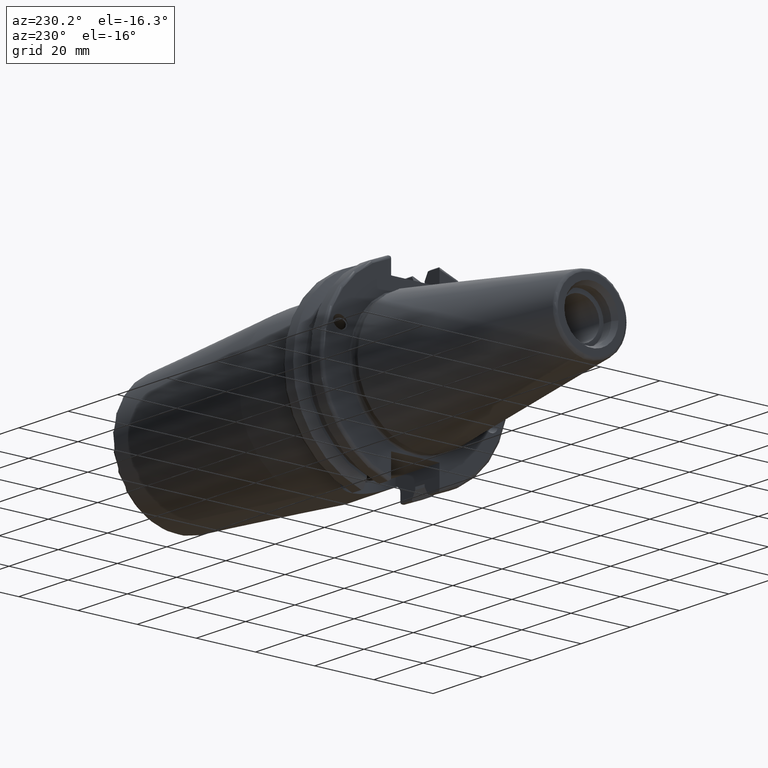
[diagram: clean part render]
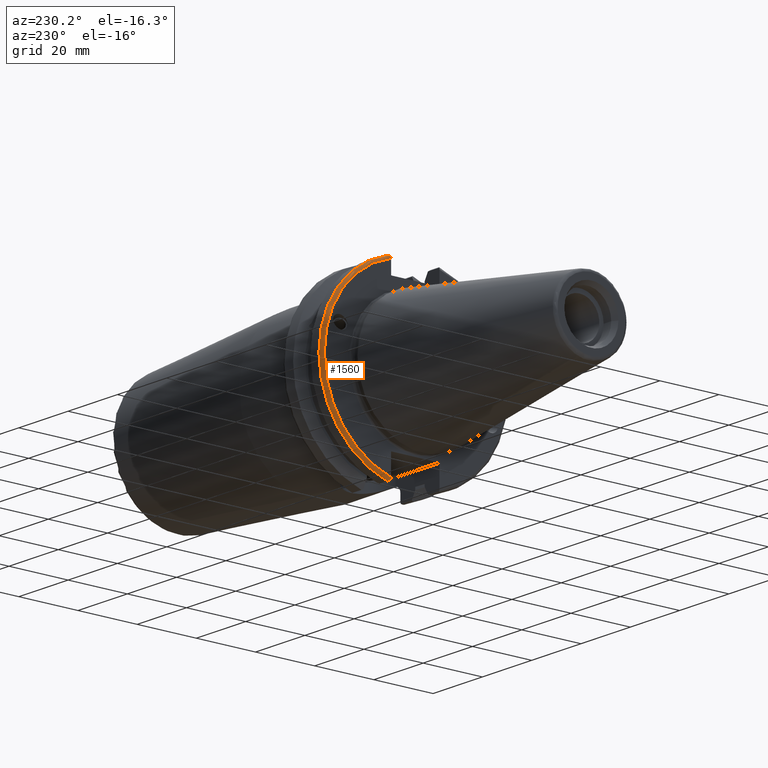
[diagram: same view with one face highlighted and labeled with its STEP entity id]
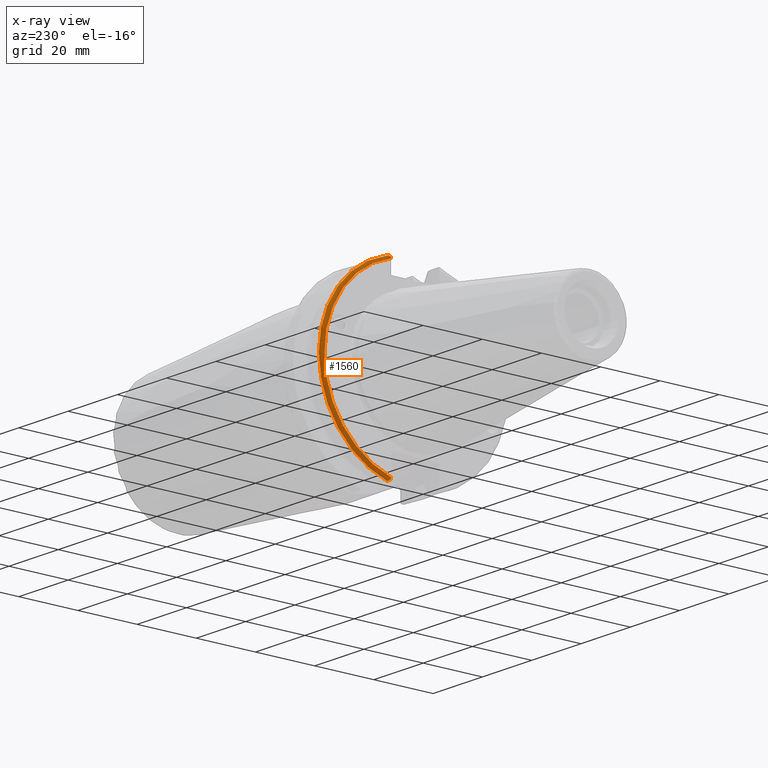
[diagram: x-ray of the same camera — body ghosted, the highlighted face saturated]
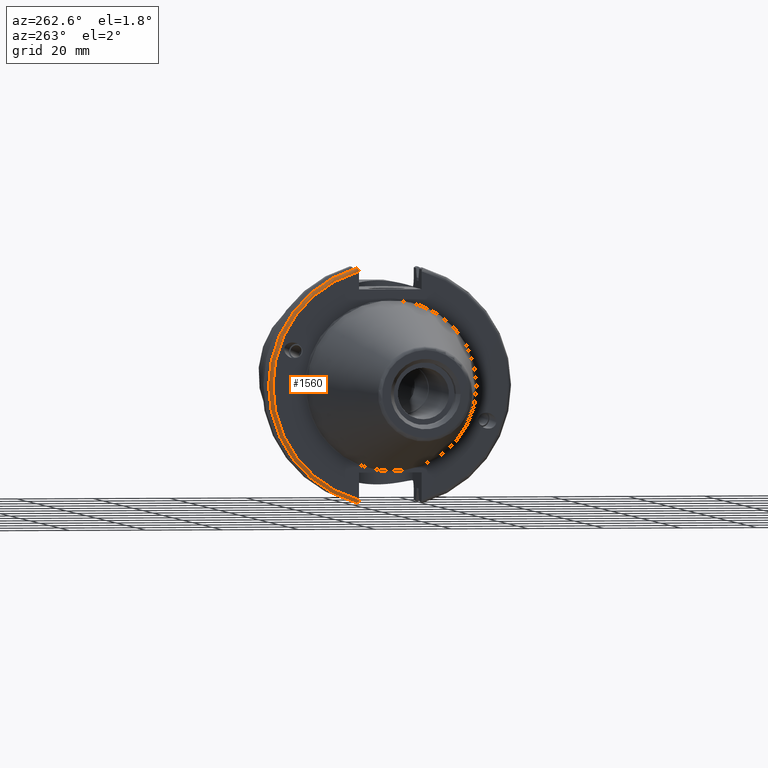
[diagram: same view with one face highlighted and labeled with its STEP entity id]
A machine part, auxiliary view. The second image highlights one B-rep face of the part: STEP entity #1560.
The next image is the same camera in x-ray: the body ghosted, the highlighted face saturated — about 0% of this face is hidden behind the body in this view.
A second angle (auxiliary view) of the same face is appended — the face is thin or edge-on in the first view.
In plain terms, the highlighted toroidal blend (fillet) surface has major radius 30.75 mm and minor (blend) radius 1 mm.
Its self-contained STEP definition (entity closure, byte-faithful):
#118=TOROIDAL_SURFACE('',#1746,30.75,1.);
#178=FACE_OUTER_BOUND('',#277,.T.);
#277=EDGE_LOOP('',(#1335,#1336,#1337,#1338,#1339,#1340));
#360=CIRCLE('',#1728,30.75);
#367=CIRCLE('',#1747,31.75);
#587=B_SPLINE_CURVE_WITH_KNOTS('',3,(#2895,#2896,#2897,#2898,#2899,#2900),
 .UNSPECIFIED.,.F.,.F.,(4,2,4),(0.0977210450333169,0.111963554372601,0.150804064902975),
 .UNSPECIFIED.);
#596=B_SPLINE_CURVE_WITH_KNOTS('',3,(#3012,#3013,#3014,#3015,#3016,#3017,
#3018,#3019),.UNSPECIFIED.,.F.,.F.,(4,2,2,4),(-0.104180282751876,-0.072978474246144,
-0.0343524753874979,0.),.UNSPECIFIED.);
#597=B_SPLINE_CURVE_WITH_KNOTS('',3,(#3022,#3023,#3024,#3025,#3026,#3027,
#3028,#3029),.UNSPECIFIED.,.F.,.F.,(4,2,2,4),(0.,0.0343524753874975,0.0729784742461445,
0.104180282751877),.UNSPECIFIED.);
#598=B_SPLINE_CURVE_WITH_KNOTS('',3,(#3030,#3031,#3032,#3033,#3034,#3035),
 .UNSPECIFIED.,.F.,.F.,(4,2,4),(0.452741154494498,0.491581665024872,0.505824174364157),
 .UNSPECIFIED.);
#709=VERTEX_POINT('',#2831);
#710=VERTEX_POINT('',#2833);
#723=VERTEX_POINT('',#2894);
#739=VERTEX_POINT('',#3010);
#740=VERTEX_POINT('',#3011);
#741=VERTEX_POINT('',#3020);
#908=EDGE_CURVE('',#710,#709,#360,.T.);
#926=EDGE_CURVE('',#723,#710,#587,.T.);
#955=EDGE_CURVE('',#739,#740,#596,.T.);
#956=EDGE_CURVE('',#740,#741,#367,.T.);
#957=EDGE_CURVE('',#741,#723,#597,.T.);
#958=EDGE_CURVE('',#709,#739,#598,.T.);
#1335=ORIENTED_EDGE('',*,*,#955,.T.);
#1336=ORIENTED_EDGE('',*,*,#956,.T.);
#1337=ORIENTED_EDGE('',*,*,#957,.T.);
#1338=ORIENTED_EDGE('',*,*,#926,.T.);
#1339=ORIENTED_EDGE('',*,*,#908,.T.);
#1340=ORIENTED_EDGE('',*,*,#958,.T.);
#1560=ADVANCED_FACE('',(#178),#118,.T.);
#1728=AXIS2_PLACEMENT_3D('',#2834,#2075,#2076);
#1746=AXIS2_PLACEMENT_3D('',#3009,#2132,#2133);
#1747=AXIS2_PLACEMENT_3D('',#3021,#2134,#2135);
#2075=DIRECTION('center_axis',(1.,0.,0.));
#2076=DIRECTION('ref_axis',(0.,1.,1.60812264967664E-16));
#2132=DIRECTION('center_axis',(1.,0.,0.));
#2133=DIRECTION('ref_axis',(0.,0.,-1.));
#2134=DIRECTION('center_axis',(-1.,0.,0.));
#2135=DIRECTION('ref_axis',(0.,1.,1.60812264967664E-16));
#2831=CARTESIAN_POINT('',(3.175,8.19,29.6392712461019));
#2833=CARTESIAN_POINT('',(3.175,8.18999999999999,-29.6392712461019));
#2834=CARTESIAN_POINT('Origin',(3.175,0.,0.));
#2894=CARTESIAN_POINT('',(3.31912772509028,8.19,-30.1755016258903));
#2895=CARTESIAN_POINT('Ctrl Pts',(3.31912772509028,8.19,-30.1755016258903));
#2896=CARTESIAN_POINT('Ctrl Pts',(3.29318362718666,8.19,-30.131014531546));
#2897=CARTESIAN_POINT('Ctrl Pts',(3.27103565282437,8.19,-30.0852355256475));
#2898=CARTESIAN_POINT('Ctrl Pts',(3.20451443291695,8.19,-29.9212724384851));
#2899=CARTESIAN_POINT('Ctrl Pts',(3.175,8.19,-29.7687396145364));
#2900=CARTESIAN_POINT('Ctrl Pts',(3.175,8.19,-29.6392712461019));
#3009=CARTESIAN_POINT('Origin',(4.175,0.,0.));
#3010=CARTESIAN_POINT('',(3.31912772509028,8.19,30.1755016258903));
#3011=CARTESIAN_POINT('',(4.175,8.67204822802685,30.5427254764662));
#3012=CARTESIAN_POINT('Ctrl Pts',(3.31912772509028,8.19,30.1755016258903));
#3013=CARTESIAN_POINT('Ctrl Pts',(3.36755369570114,8.2703682833078,30.2367261024977));
#3014=CARTESIAN_POINT('Ctrl Pts',(3.43232973376814,8.34909446036477,30.2966996242308));
#3015=CARTESIAN_POINT('Ctrl Pts',(3.58532758094931,8.48862804755884,30.4029961692546));
#3016=CARTESIAN_POINT('Ctrl Pts',(3.70655857052286,8.56482138642532,30.4610401774263));
#3017=CARTESIAN_POINT('Ctrl Pts',(3.92668295662254,8.6471881193939,30.5237870709558));
#3018=CARTESIAN_POINT('Ctrl Pts',(4.06049174870834,8.67204822802686,30.5427254764662));
#3019=CARTESIAN_POINT('Ctrl Pts',(4.175,8.67204822802686,30.5427254764662));
#3020=CARTESIAN_POINT('',(4.175,8.67204822802685,-30.5427254764662));
#3021=CARTESIAN_POINT('Origin',(4.175,0.,0.));
#3022=CARTESIAN_POINT('Ctrl Pts',(4.175,8.67204822802685,-30.5427254764662));
#3023=CARTESIAN_POINT('Ctrl Pts',(4.06049174870834,8.67204822802685,-30.5427254764662));
#3024=CARTESIAN_POINT('Ctrl Pts',(3.92668295662254,8.6471881193939,-30.5237870709558));
#3025=CARTESIAN_POINT('Ctrl Pts',(3.70655857052286,8.56482138642533,-30.4610401774263));
#3026=CARTESIAN_POINT('Ctrl Pts',(3.58532758094931,8.48862804755884,-30.4029961692546));
#3027=CARTESIAN_POINT('Ctrl Pts',(3.43232973376814,8.34909446036477,-30.2966996242308));
#3028=CARTESIAN_POINT('Ctrl Pts',(3.36755369570113,8.2703682833078,-30.2367261024977));
#3029=CARTESIAN_POINT('Ctrl Pts',(3.31912772509028,8.18999999999999,-30.1755016258903));
#3030=CARTESIAN_POINT('Ctrl Pts',(3.175,8.19,29.6392712461018));
#3031=CARTESIAN_POINT('Ctrl Pts',(3.175,8.19,29.7687396145364));
#3032=CARTESIAN_POINT('Ctrl Pts',(3.20451443291695,8.19,29.9212724384851));
#3033=CARTESIAN_POINT('Ctrl Pts',(3.27103565282437,8.19,30.0852355256475));
#3034=CARTESIAN_POINT('Ctrl Pts',(3.29318362718666,8.19,30.131014531546));
#3035=CARTESIAN_POINT('Ctrl Pts',(3.31912772509028,8.19,30.1755016258903));